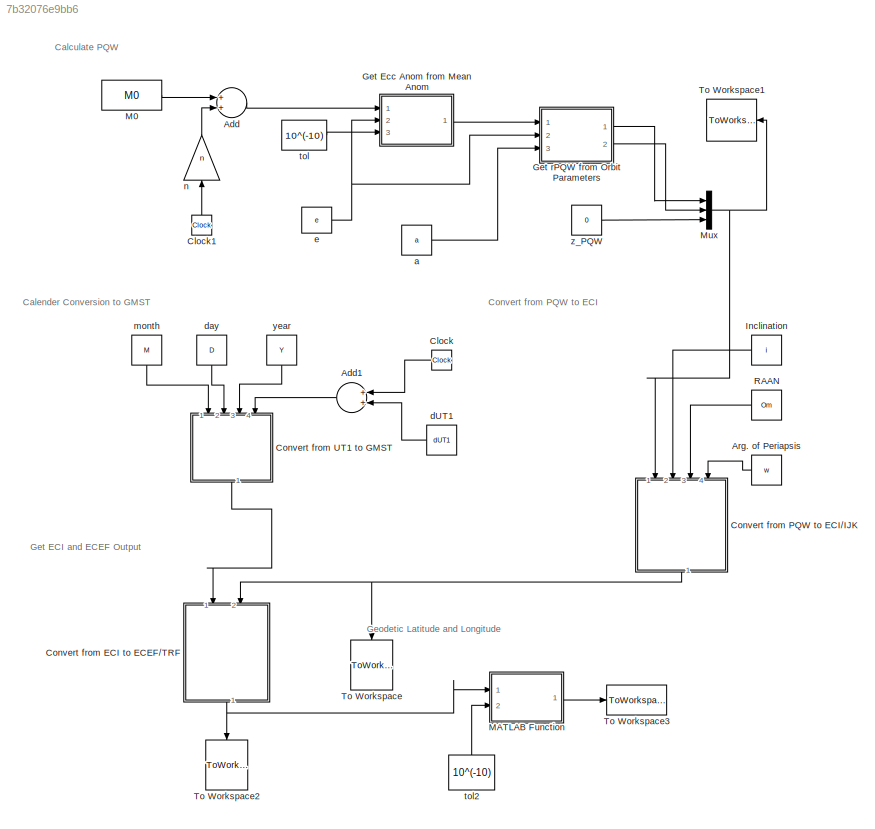
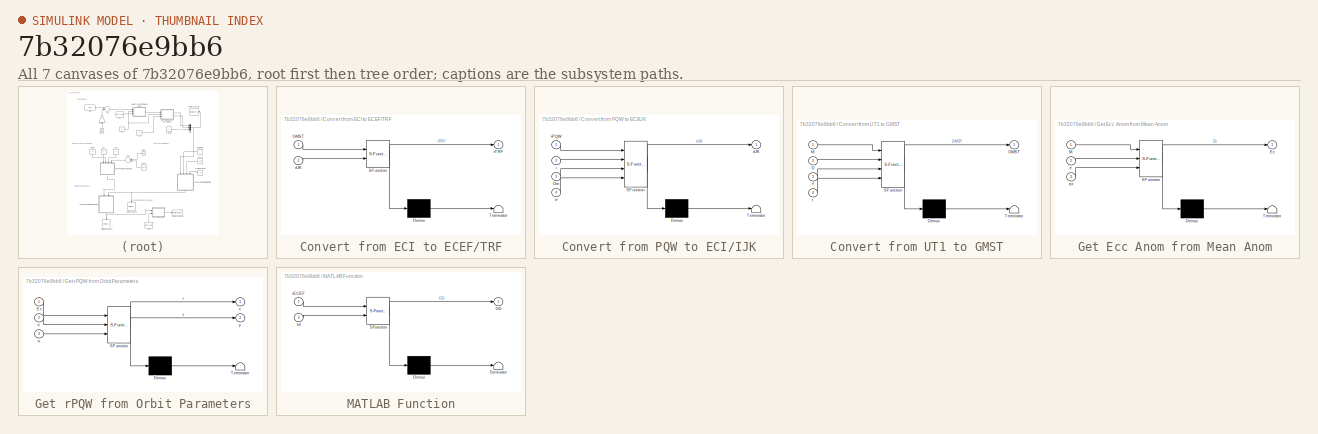
[diagram: thumbnail index - all 7 canvases of the model, root first then tree order]
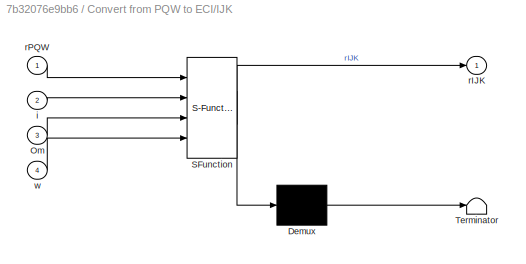
MODEL slx_7b32076e9bb6
KIND model
CONFIG AbsTol = auto
CONFIG FixedStep = 120
CONFIG MaxStep = auto
CONFIG MinStep = auto
CONFIG RelTol = 1e-3
CONFIG SampleTimeConstraint = Unconstrained
CONFIG Solver = ode3
CONFIG SolverMode = Auto
CONFIG SolverName = ode3
CONFIG StartTime = 0.0
CONFIG StopTime = 86400
BLOCK [Sum] Add
  InputSameDT = off
  OutDataTypeStr = Inherit: Inherit via internal rule
  Ports = [2, 1]
  SaturateOnIntegerOverflow = off
BLOCK [Sum] Add1
  InputSameDT = off
  OutDataTypeStr = Inherit: Inherit via internal rule
  Ports = [2, 1]
  SaturateOnIntegerOverflow = off
BLOCK [Constant] Arg. of Periapsis
  Value = w
BLOCK [Clock] Clock
BLOCK [Clock] Clock1
BLOCK [SubSystem] Convert from ECI to ECEF//TRF
  ErrorFcn = Stateflow.Translate.translate
  PermitHierarchicalResolution = ExplicitOnly
  Ports = [2, 1]
  RequestExecContextInheritance = off
  SFBlockType = MATLAB Function
  TreatAsAtomicUnit = on
BLOCK [Demux] Convert from ECI to ECEF//TRF/ Demux 
  Outputs = 1
  Ports = [1, 1]
BLOCK [S-Function] Convert from ECI to ECEF//TRF/ SFunction 
  EnableBusSupport = on
  FunctionName = sf_sfun
  PortCounts = [2 2]
  Ports = [2, 2]
  Tag = Stateflow S-Function SimOrbit 5
BLOCK [Terminator] Convert from ECI to ECEF//TRF/ Terminator 
BLOCK [Inport] Convert from ECI to ECEF//TRF/GMST
  IconDisplay = Port number
BLOCK [Inport] Convert from ECI to ECEF//TRF/rIJK
  IconDisplay = Port number
  Port = 2
BLOCK [Outport] Convert from ECI to ECEF//TRF/rTRF
  IconDisplay = Port number
BLOCK [SubSystem] Convert from PQW to ECI//IJK
  ErrorFcn = Stateflow.Translate.translate
  PermitHierarchicalResolution = ExplicitOnly
  Ports = [4, 1]
  RequestExecContextInheritance = off
  SFBlockType = MATLAB Function
  TreatAsAtomicUnit = on
BLOCK [Demux] Convert from PQW to ECI//IJK/ Demux 
  Outputs = 1
  Ports = [1, 1]
BLOCK [S-Function] Convert from PQW to ECI//IJK/ SFunction 
  EnableBusSupport = on
  FunctionName = sf_sfun
  PortCounts = [4 2]
  Ports = [4, 2]
  Tag = Stateflow S-Function SimOrbit 3
BLOCK [Terminator] Convert from PQW to ECI//IJK/ Terminator 
BLOCK [Inport] Convert from PQW to ECI//IJK/Om
  IconDisplay = Port number
  Port = 3
BLOCK [Inport] Convert from PQW to ECI//IJK/i
  IconDisplay = Port number
  Port = 2
BLOCK [Outport] Convert from PQW to ECI//IJK/rIJK
  IconDisplay = Port number
BLOCK [Inport] Convert from PQW to ECI//IJK/rPQW
  IconDisplay = Port number
BLOCK [Inport] Convert from PQW to ECI//IJK/w
  IconDisplay = Port number
  Port = 4
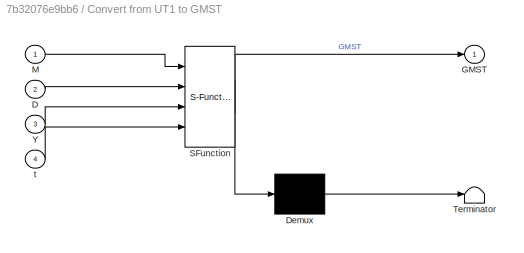
BLOCK [SubSystem] Convert from UT1 to GMST
  ErrorFcn = Stateflow.Translate.translate
  PermitHierarchicalResolution = ExplicitOnly
  Ports = [4, 1]
  RequestExecContextInheritance = off
  SFBlockType = MATLAB Function
  TreatAsAtomicUnit = on
BLOCK [Demux] Convert from UT1 to GMST/ Demux 
  Outputs = 1
  Ports = [1, 1]
BLOCK [S-Function] Convert from UT1 to GMST/ SFunction 
  EnableBusSupport = on
  FunctionName = sf_sfun
  PortCounts = [4 2]
  Ports = [4, 2]
  Tag = Stateflow S-Function SimOrbit 4
BLOCK [Terminator] Convert from UT1 to GMST/ Terminator 
BLOCK [Inport] Convert from UT1 to GMST/D
  IconDisplay = Port number
  Port = 2
BLOCK [Outport] Convert from UT1 to GMST/GMST
  IconDisplay = Port number
BLOCK [Inport] Convert from UT1 to GMST/M
  IconDisplay = Port number
BLOCK [Inport] Convert from UT1 to GMST/Y
  IconDisplay = Port number
  Port = 3
BLOCK [Inport] Convert from UT1 to GMST/t
  IconDisplay = Port number
  Port = 4
BLOCK [SubSystem] Get Ecc Anom from Mean Anom
  ErrorFcn = Stateflow.Translate.translate
  PermitHierarchicalResolution = ExplicitOnly
  Ports = [3, 1]
  RequestExecContextInheritance = off
  SFBlockType = MATLAB Function
  TreatAsAtomicUnit = on
BLOCK [Demux] Get Ecc Anom from Mean Anom/ Demux 
  Outputs = 1
  Ports = [1, 1]
BLOCK [S-Function] Get Ecc Anom from Mean Anom/ SFunction 
  EnableBusSupport = on
  FunctionName = sf_sfun
  PortCounts = [3 2]
  Ports = [3, 2]
  Tag = Stateflow S-Function SimOrbit 2
BLOCK [Terminator] Get Ecc Anom from Mean Anom/ Terminator 
BLOCK [Outport] Get Ecc Anom from Mean Anom/Ec
  IconDisplay = Port number
BLOCK [Inport] Get Ecc Anom from Mean Anom/M
  IconDisplay = Port number
BLOCK [Inport] Get Ecc Anom from Mean Anom/e
  IconDisplay = Port number
  Port = 2
BLOCK [Inport] Get Ecc Anom from Mean Anom/tol
  IconDisplay = Port number
  Port = 3
BLOCK [SubSystem] Get rPQW from Orbit Parameters
  ErrorFcn = Stateflow.Translate.translate
  PermitHierarchicalResolution = ExplicitOnly
  Ports = [3, 2]
  RequestExecContextInheritance = off
  SFBlockType = MATLAB Function
  TreatAsAtomicUnit = on
BLOCK [Demux] Get rPQW from Orbit Parameters/ Demux 
  Outputs = 1
  Ports = [1, 1]
BLOCK [S-Function] Get rPQW from Orbit Parameters/ SFunction 
  EnableBusSupport = on
  FunctionName = sf_sfun
  PortCounts = [3 3]
  Ports = [3, 3]
  Tag = Stateflow S-Function SimOrbit 1
BLOCK [Terminator] Get rPQW from Orbit Parameters/ Terminator 
BLOCK [Inport] Get rPQW from Orbit Parameters/Ec
  IconDisplay = Port number
BLOCK [Inport] Get rPQW from Orbit Parameters/a
  IconDisplay = Port number
  Port = 3
BLOCK [Inport] Get rPQW from Orbit Parameters/e
  IconDisplay = Port number
  Port = 2
BLOCK [Outport] Get rPQW from Orbit Parameters/x
  IconDisplay = Port number
BLOCK [Outport] Get rPQW from Orbit Parameters/y
  IconDisplay = Port number
  Port = 2
BLOCK [Constant] Inclination
  Value = i
BLOCK [Constant] M0
  Value = M0
BLOCK [SubSystem] MATLAB Function
  ErrorFcn = Stateflow.Translate.translate
  PermitHierarchicalResolution = ExplicitOnly
  Ports = [2, 1]
  RequestExecContextInheritance = off
  SFBlockType = MATLAB Function
  TreatAsAtomicUnit = on
BLOCK [Demux] MATLAB Function/ Demux 
  Outputs = 1
  Ports = [1, 1]
BLOCK [S-Function] MATLAB Function/ SFunction 
  EnableBusSupport = on
  FunctionName = sf_sfun
  PortCounts = [2 2]
  Ports = [2, 2]
  Tag = Stateflow S-Function SimOrbit 6
BLOCK [Terminator] MATLAB Function/ Terminator 
BLOCK [Outport] MATLAB Function/GD
  IconDisplay = Port number
BLOCK [Inport] MATLAB Function/rECEF
  IconDisplay = Port number
BLOCK [Inport] MATLAB Function/tol
  IconDisplay = Port number
  Port = 2
BLOCK [Mux] Mux
  DisplayOption = bar
  Inputs = 3
  Ports = [3, 1]
BLOCK [Constant] RAAN
  Value = Om
BLOCK [ToWorkspace] To Workspace
  MaxDataPoints = inf
  Ports = [1]
  SampleTime = -1
  Save2DSignal = 2-D array (concatenate along first dimension)
  VariableName = rIJK
BLOCK [ToWorkspace] To Workspace1
  MaxDataPoints = inf
  Ports = [1]
  SampleTime = -1
  Save2DSignal = 2-D array (concatenate along first dimension)
  VariableName = rPQW
BLOCK [ToWorkspace] To Workspace2
  MaxDataPoints = inf
  Ports = [1]
  SampleTime = -1
  Save2DSignal = 2-D array (concatenate along first dimension)
  VariableName = rTRF
BLOCK [ToWorkspace] To Workspace3
  FixptAsFi = on
  MaxDataPoints = inf
  Ports = [1]
  SampleTime = -1
  Save2DSignal = 3-D array (concatenate along third dimension)
  VariableName = GD
BLOCK [Constant] a
  Value = a
BLOCK [Constant] dUT1
  Value = dUT1
BLOCK [Constant] day
  Value = D
BLOCK [Constant] e
  Value = e
BLOCK [Constant] month
  Value = M
BLOCK [Gain] n
  Gain = n
  OutDataTypeStr = Inherit: Inherit via internal rule
  ParamDataTypeStr = Inherit: Inherit via internal rule
  SaturateOnIntegerOverflow = off
BLOCK [Constant] tol
  Value = 10^(-10)
BLOCK [Constant] tol2
  Value = 10^(-10)
BLOCK [Constant] year
  Value = Y
BLOCK [Constant] z_PQW
  Value = 0
ANNOTATION (root): Calculate PQW
ANNOTATION (root): Calender Conversion to GMST
ANNOTATION (root): Convert from PQW to ECI
ANNOTATION (root): Geodetic Latitude and Longitude
ANNOTATION (root): Get ECI and ECEF Output
LINE Add1:1 -> Convert from UT1 to GMST:4
LINE Add:1 -> Get Ecc Anom from Mean Anom:1
LINE Arg. of Periapsis:1 -> Convert from PQW to ECI//IJK:4
LINE Clock1:1 -> n:1
LINE Clock:1 -> Add1:1
NET Convert from ECI to ECEF//TRF:1 -> MATLAB Function:1, To Workspace2:1
NET Convert from PQW to ECI//IJK:1 -> Convert from ECI to ECEF//TRF:2, To Workspace:1
LINE Convert from UT1 to GMST:1 -> Convert from ECI to ECEF//TRF:1
LINE Get Ecc Anom from Mean Anom:1 -> Get rPQW from Orbit Parameters:1
LINE Get rPQW from Orbit Parameters:1 -> Mux:1
LINE Get rPQW from Orbit Parameters:2 -> Mux:2
LINE Inclination:1 -> Convert from PQW to ECI//IJK:2
LINE M0:1 -> Add:1
LINE MATLAB Function:1 -> To Workspace3:1
NET Mux:1 -> Convert from PQW to ECI//IJK:1, To Workspace1:1
LINE RAAN:1 -> Convert from PQW to ECI//IJK:3
LINE a:1 -> Get rPQW from Orbit Parameters:3
LINE dUT1:1 -> Add1:2
LINE day:1 -> Convert from UT1 to GMST:2
NET e:1 -> Get Ecc Anom from Mean Anom:2, Get rPQW from Orbit Parameters:2
LINE month:1 -> Convert from UT1 to GMST:1
LINE n:1 -> Add:2
LINE tol2:1 -> MATLAB Function:2
LINE tol:1 -> Get Ecc Anom from Mean Anom:3
LINE year:1 -> Convert from UT1 to GMST:3
LINE z_PQW:1 -> Mux:3
note: NET lines group one-source signal fan-out (src -> all destinations, sorted); 1:1 wires keep LINE
CHART Get rPQW from 
Orbit Parameters states=1 transitions=1
  STATE_LABEL 'eML_blk_kernel()'
  STATE_LABEL 'SCRIPT:\nfunction [x,y] = EctoPos(Ec,e,a)\nx = a*(cos(Ec)-e);\ny = a*sqrt(1-e^2)*sin(Ec);\nend\n'
CHART Get Ecc Anom
from Mean Anom states=1 transitions=1
  STATE_LABEL 'eML_blk_kernel()'
  STATE_LABEL 'SCRIPT:\nfunction Ec = fcn(M,e,tol)\ner = 100;\nEc = M;\nEco = M;\niter = 0;\nwhile er >= tol && iter <= 100\n    del = -(Eco-e*sin(Eco)-M)/(1-e*cos(Eco));\n    Ec = Eco + del;\n    er = abs(Ec-Eco);\n    Eco = Ec;\n    iter = iter + 1;\nend'
CHART Convert from PQW
to ECI//IJK states=1 transitions=1
  STATE_LABEL 'eML_blk_kernel()'
  STATE_LABEL 'SCRIPT:\nfunction rIJK  = rIJKsim(rPQW,i,Om,w)\nR = rotPQWtoIJK(Om,i,w);\nrIJK = R*rPQW;\nend'
CHART Convert from UT1 
to GMST states=1 transitions=1
  STATE_LABEL 'eML_blk_kernel()'
  STATE_LABEL 'SCRIPT:\nfunction GMST = GMSTsim(M,D,Y,t)\nMJD = UT1toMJD(M,D,Y,t);\nGMST = MJDtoGMST(MJD);\nend\n\n'
CHART Convert from ECI 
to ECEF//TRF states=1 transitions=1
  STATE_LABEL 'eML_blk_kernel()'
  STATE_LABEL 'SCRIPT:\nfunction rTRF  = rTRFsim(GMST,rIJK)\nR = rotCRFtoTRF(GMST);\nrTRF = R*rIJK;\nend'
CHART MATLAB Function states=1 transitions=1
  STATE_LABEL 'eML_blk_kernel()'
  STATE_LABEL "SCRIPT:\nfunction GD = fcn(rECEF,tol)\nimax = 100;\nGD = ECEFtoGD(rECEF,tol,imax)';\nend"
